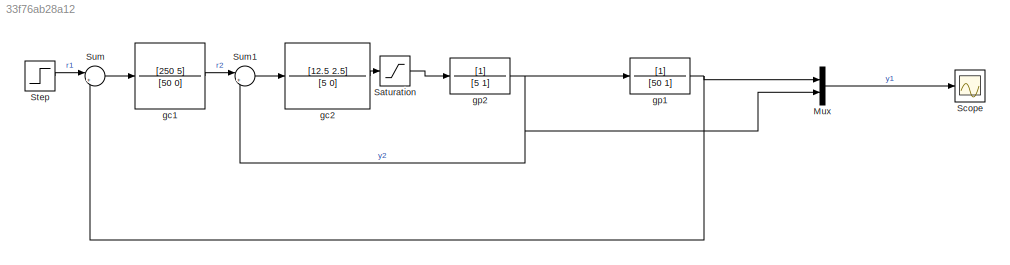
MODEL slx_33f76ab28a12
KIND model
CONFIG AbsTol = auto
CONFIG EnableMultiTasking = off
CONFIG FixedStep = auto
CONFIG MaxStep = auto
CONFIG MinStep = auto
CONFIG RelTol = 1e-3
CONFIG SampleTimeConstraint = Unconstrained
CONFIG SolverName = VariableStepAuto
CONFIG StartTime = 0.0
CONFIG StopTime = 100
BLOCK [Mux] Mux
  DisplayOption = bar
  Inputs = 2
BLOCK [Saturate] Saturation
  LowerLimit = -3
  UpperLimit = 3
BLOCK [Scope] Scope
  Floating = off
  NumInputPorts = 1
  ScopeSpecificationString = Simulink.scopes.TimeScopeBlockCfg('CurrentConfiguration', extmgr.ConfigurationSet(extmgr.Configuration('Core','General UI',true),extmgr.Configuration('Core','Source UI',true),extmgr.Configuration('Sources','WiredSimulink',true),extmgr.Configuration('Visuals','Time Domain',true,'SerializedDisplays',{struct('MinYLimReal','-0.37426','MaxYLimReal','3.3683','YLabelReal','','MinYLimMag','0.00000','MaxYL...<+1366ch>
BLOCK [Step] Step
  SampleTime = 0
BLOCK [Sum] Sum
  Inputs = |+-
BLOCK [Sum] Sum1
  Inputs = |+-
BLOCK [TransferFcn] gc1
  Denominator = [50 0]
  Numerator = [250 5]
BLOCK [TransferFcn] gc2
  Denominator = [5 0]
  Numerator = [12.5 2.5]
BLOCK [TransferFcn] gp1
  Denominator = [50 1]
BLOCK [TransferFcn] gp2
  Denominator = [5 1]
LINE Mux:1 -> Scope:1
LINE Saturation:1 -> gp2:1
LINE Step:1 -> Sum:1
LINE Sum1:1 -> gc2:1
LINE Sum:1 -> gc1:1
LINE gc1:1 -> Sum1:1
LINE gc2:1 -> Saturation:1
NET gp1:1 -> Mux:1, Sum:2
NET gp2:1 -> Mux:2, Sum1:2, gp1:1
note: NET lines group one-source signal fan-out (src -> all destinations, sorted); 1:1 wires keep LINE
